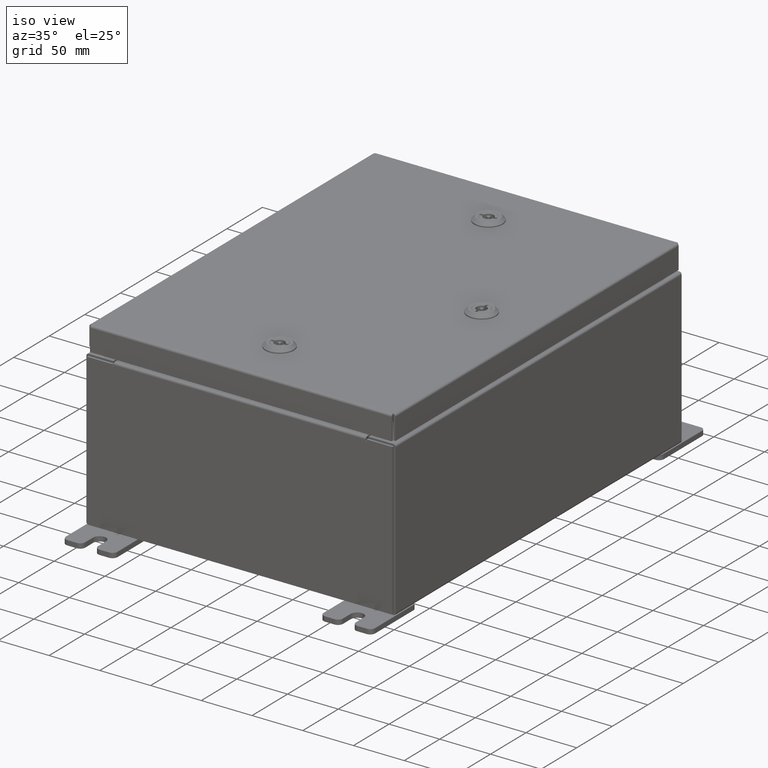
[diagram: clean part render]
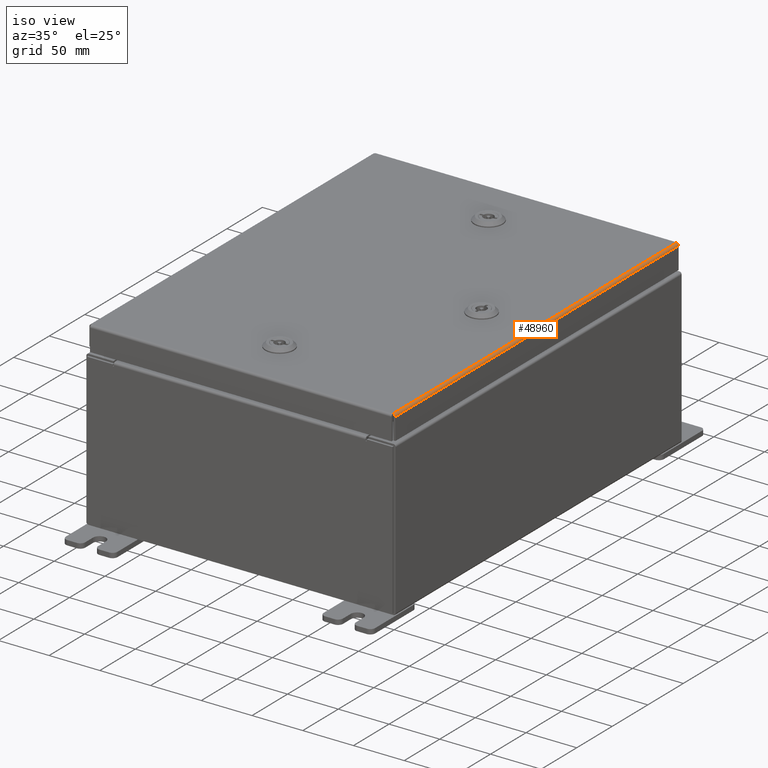
[diagram: same view with one face highlighted and labeled with its STEP entity id]
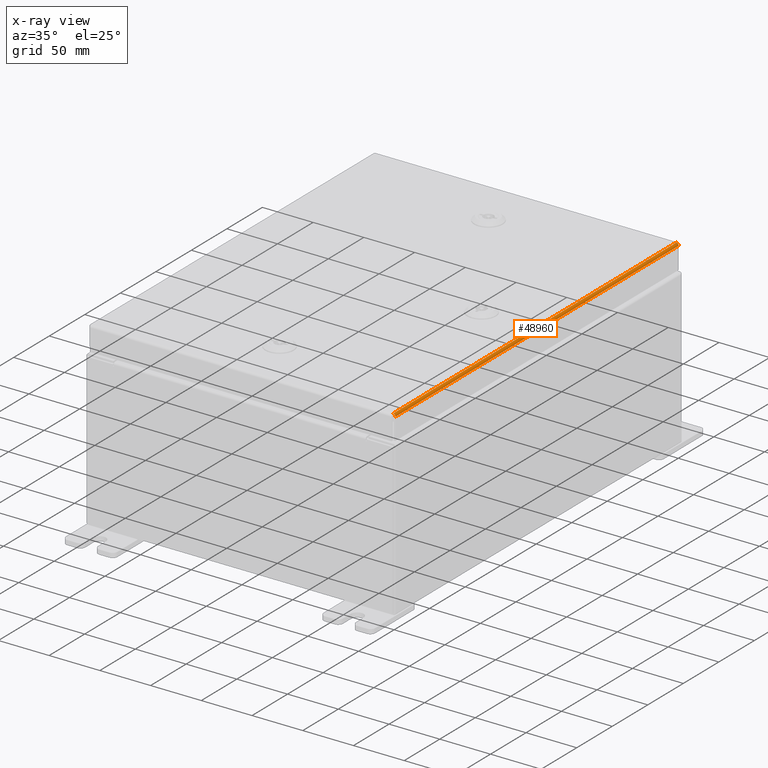
[diagram: x-ray of the same camera — body ghosted, the highlighted face saturated]
A machine part, iso view. The second image highlights one B-rep face of the part: STEP entity #48960.
The next image is the same camera in x-ray: the body ghosted, the highlighted face saturated — about 0% of this face is hidden behind the body in this view.
In plain terms, the highlighted cylindrical surface (edge-blend (fillet) strip) has radius 2.2276 mm, axis along (-0, -1, -0).
Its self-contained STEP definition (entity closure, byte-faithful):
#146 = VECTOR ( 'NONE', #40130, 39.37007874015748100 ) ;
#748 = CARTESIAN_POINT ( 'NONE',  ( 5.926431066258666100, 7.849038576250846300, -0.04353261542147061200 ) ) ;
#905 = CARTESIAN_POINT ( 'NONE',  ( 5.849799999999998300, -7.849800000000000100, -7.683322482180740400E-016 ) ) ;
#1480 = EDGE_CURVE ( 'NONE', #56463, #41177, #31968, .T. ) ;
#2345 = CARTESIAN_POINT ( 'NONE',  ( 5.919930782078321100, -7.849133754219491400, -0.03380425265820231200 ) ) ;
#4055 = DIRECTION ( 'NONE',  ( -0.0000000000000000000, -1.000000000000000000, -0.0000000000000000000 ) ) ;
#7002 = CARTESIAN_POINT ( 'NONE',  ( 5.937499999999998200, 7.848657864376269400, -0.08770000000000052800 ) ) ;
#7059 = CARTESIAN_POINT ( 'NONE',  ( 5.893967384578526300, -7.849419288125424100, -0.01106893374133289000 ) ) ;
#8831 = LINE ( 'NONE', #33195, #51400 ) ;
#9039 = VERTEX_POINT ( 'NONE', #49820 ) ;
#11558 = CARTESIAN_POINT ( 'NONE',  ( 5.937499999999998200, -7.848753042344911000, -0.07622009684501120100 ) ) ;
#11766 = CARTESIAN_POINT ( 'NONE',  ( 5.861279903154991400, -7.849704822031356800, -7.687991167716788000E-016 ) ) ;
#13894 = ORIENTED_EDGE ( 'NONE', *, *, #41943, .F. ) ;
#19201 = CARTESIAN_POINT ( 'NONE',  ( 5.937500000000000000, 7.848753042344914600, -0.07622009684500447000 ) ) ;
#20292 = CARTESIAN_POINT ( 'NONE',  ( 5.935217403743809700, 7.848848220313557900, -0.06474471054168874600 ) ) ;
#21572 = CARTESIAN_POINT ( 'NONE',  ( 5.861279903154988700, 7.849704822031355900, -7.695327673559145500E-016 ) ) ;
#27668 = CARTESIAN_POINT ( 'NONE',  ( 5.849799999999998300, -7.849800000000000100, -7.683322482180740400E-016 ) ) ;
#29113 = CARTESIAN_POINT ( 'NONE',  ( 5.893967384578524500, 7.849419288125424100, -0.01106893374133173300 ) ) ;
#29121 = EDGE_CURVE ( 'NONE', #41177, #9039, #8831, .T. ) ;
#29173 = CARTESIAN_POINT ( 'NONE',  ( 5.849799999999998300, 7.849800000000000100, -2.219626494852214000E-016 ) ) ;
#30093 = ORIENTED_EDGE ( 'NONE', *, *, #1480, .F. ) ;
#30355 = CARTESIAN_POINT ( 'NONE',  ( 5.926431066258667000, -7.849038576250843700, -0.04353261542147486600 ) ) ;
#31968 = B_SPLINE_CURVE_WITH_KNOTS ( 'NONE', 3,
 ( #29173, #21572, #49265, #29113, #51672, #33642, #748, #20292, #19201, #36068 ),
 .UNSPECIFIED., .F., .F.,
 ( 4, 2, 2, 2, 4 ),
 ( 0.0000000000000000000, 0.2500000000000000000, 0.5000000000000000000, 0.7500000000000000000, 1.000000000000000000 ),
 .UNSPECIFIED. ) ;
#32087 = CARTESIAN_POINT ( 'NONE',  ( 5.849799999999998300, -7.849800000000000100, -0.08770000000000086100 ) ) ;
#32553 = EDGE_CURVE ( 'NONE', #45469, #56463, #38194, .T. ) ;
#33195 = CARTESIAN_POINT ( 'NONE',  ( 5.937499999999998200, 6.036738747575930900E-018, -0.08770000000000052800 ) ) ;
#33642 = CARTESIAN_POINT ( 'NONE',  ( 5.919930782078317600, 7.849133754219493200, -0.03380425265819892600 ) ) ;
#35033 = CARTESIAN_POINT ( 'NONE',  ( 5.903695747341801700, -7.849324110156779900, -0.01756921792168121900 ) ) ;
#36068 = CARTESIAN_POINT ( 'NONE',  ( 5.937499999999998200, 7.848657864376269400, -0.08770000000000052800 ) ) ;
#36787 = DIRECTION ( 'NONE',  ( 1.000000000000000000, 0.0000000000000000000, 3.893740013774593800E-015 ) ) ;
#38194 = LINE ( 'NONE', #905, #146 ) ;
#39794 = CARTESIAN_POINT ( 'NONE',  ( 5.872755289458308600, -7.849609644062711700, -0.002282596256189604700 ) ) ;
#40130 = DIRECTION ( 'NONE',  ( 0.0000000000000000000, 1.000000000000000000, 0.0000000000000000000 ) ) ;
#41177 = VERTEX_POINT ( 'NONE', #7002 ) ;
#41454 = FACE_OUTER_BOUND ( 'NONE', #51895, .T. ) ;
#41943 = EDGE_CURVE ( 'NONE', #9039, #45469, #56288, .T. ) ;
#44386 = CARTESIAN_POINT ( 'NONE',  ( 5.937499999999998200, -7.848657864376269400, -0.08770000000000106900 ) ) ;
#44589 = CARTESIAN_POINT ( 'NONE',  ( 5.849799999999998300, -7.849800000000000100, -7.683322482180740400E-016 ) ) ;
#45469 = VERTEX_POINT ( 'NONE', #27668 ) ;
#47228 = ORIENTED_EDGE ( 'NONE', *, *, #32553, .F. ) ;
#47937 = AXIS2_PLACEMENT_3D ( 'NONE', #32087, #4055, #36787 ) ;
#48960 = ADVANCED_FACE ( 'NONE', ( #41454 ), #49539, .T. ) ;
#49265 = CARTESIAN_POINT ( 'NONE',  ( 5.872755289458306800, 7.849609644062715200, -0.002282596256189361000 ) ) ;
#49539 = CYLINDRICAL_SURFACE ( 'NONE', #47937, 0.08770000000000026400 ) ;
#49820 = CARTESIAN_POINT ( 'NONE',  ( 5.937499999999998200, -7.848657864376269400, -0.08770000000000106900 ) ) ;
#51090 = DIRECTION ( 'NONE',  ( 2.614747574225769900E-031, -1.000000000000000000, -6.883396519469013400E-017 ) ) ;
#51400 = VECTOR ( 'NONE', #51090, 39.37007874015748100 ) ;
#51672 = CARTESIAN_POINT ( 'NONE',  ( 5.903695747341799000, 7.849324110156780800, -0.01756921792167938700 ) ) ;
#51895 = EDGE_LOOP ( 'NONE', ( #47228, #13894, #53440, #30093 ) ) ;
#53440 = ORIENTED_EDGE ( 'NONE', *, *, #29121, .F. ) ;
#56288 = B_SPLINE_CURVE_WITH_KNOTS ( 'NONE', 3,
 ( #44386, #11558, #58484, #30355, #2345, #35033, #7059, #39794, #11766, #44589 ),
 .UNSPECIFIED., .F., .F.,
 ( 4, 2, 2, 2, 4 ),
 ( 0.0000000000000000000, 0.2500000000000000000, 0.5000000000000000000, 0.7500000000000000000, 1.000000000000000000 ),
 .UNSPECIFIED. ) ;
#56463 = VERTEX_POINT ( 'NONE', #58337 ) ;
#58337 = CARTESIAN_POINT ( 'NONE',  ( 5.849799999999998300, 7.849800000000000100, -2.219626494852214000E-016 ) ) ;
#58484 = CARTESIAN_POINT ( 'NONE',  ( 5.935217403743810600, -7.848848220313558800, -0.06474471054169465800 ) ) ;